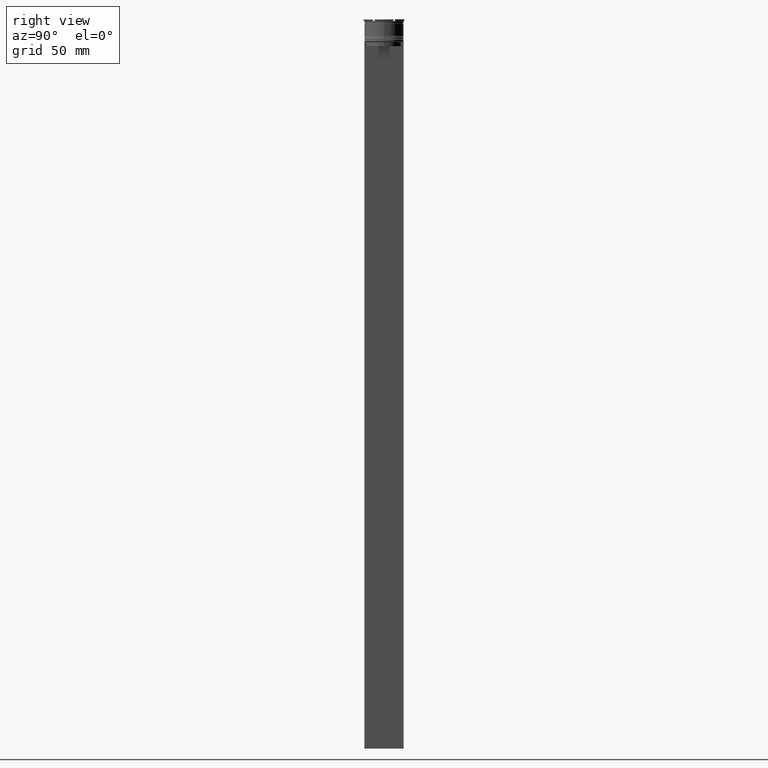
[diagram: clean part render]
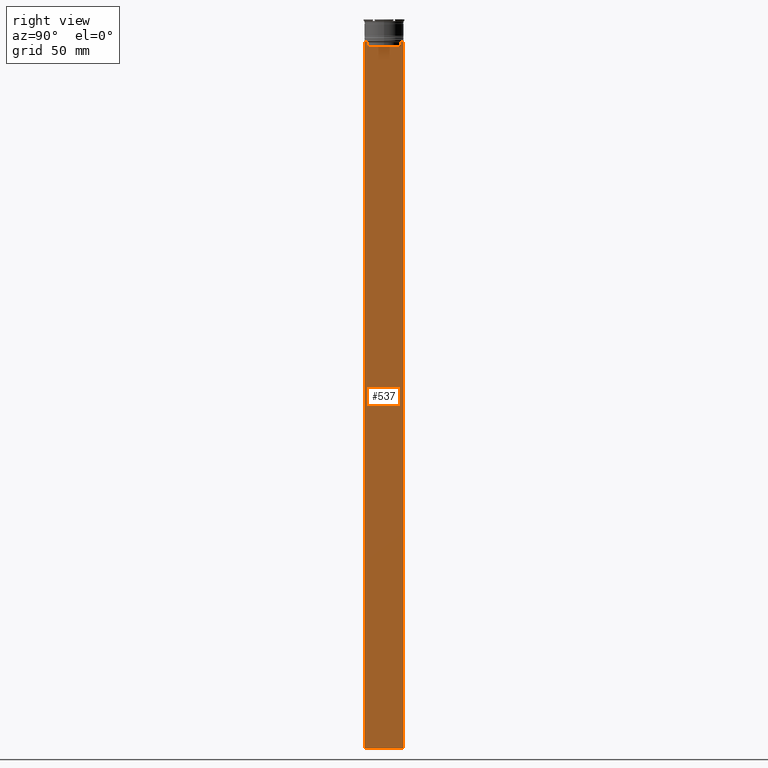
[diagram: same view with one face highlighted and labeled with its STEP entity id]
A machine part, right view. The second image highlights one B-rep face of the part: STEP entity #537.
In plain terms, the highlighted planar face has unit normal (-1, 0, 0).
Its self-contained STEP definition (entity closure, byte-faithful):
#28 = VERTEX_POINT ( 'NONE', #1785 ) ;
#31 = PLANE ( 'NONE',  #1013 ) ;
#105 = CARTESIAN_POINT ( 'NONE',  ( 0.5000000000000000000, 10.88852607105296322, 0.000000000000000000 ) ) ;
#127 = EDGE_LOOP ( 'NONE', ( #1177, #884, #1320, #496, #2816, #2507, #1279, #2245, #497, #1864, #1238, #2290 ) ) ;
#143 = CARTESIAN_POINT ( 'NONE',  ( 0.5000000000000000000, 10.88852607105296322, -14.50000000000000000 ) ) ;
#169 = CARTESIAN_POINT ( 'NONE',  ( 0.5000000000000000000, -12.38991525394746773, -14.00000000000000178 ) ) ;
#186 = VERTEX_POINT ( 'NONE', #169 ) ;
#201 = DIRECTION ( 'NONE',  ( 0.000000000000000000, 0.000000000000000000, -1.000000000000000000 ) ) ;
#275 = B_SPLINE_CURVE_WITH_KNOTS ( 'NONE', 3,
 ( #2765, #551, #1432, #2344 ),
 .UNSPECIFIED., .F., .F.,
 ( 4, 4 ),
 ( 0.01935560801904634073, 0.02006307108468586772 ),
 .UNSPECIFIED. ) ;
#318 = EDGE_CURVE ( 'NONE', #898, #1313, #2587, .T. ) ;
#410 = CARTESIAN_POINT ( 'NONE',  ( 0.5000000000000000000, 12.50000000000000711, -14.00000000000000178 ) ) ;
#450 = DIRECTION ( 'NONE',  ( 0.000000000000000000, -1.000000000000000000, 0.000000000000000000 ) ) ;
#495 = CARTESIAN_POINT ( 'NONE',  ( 0.5000000000000000000, -11.38902980942626719, -14.00000000000000178 ) ) ;
#496 = ORIENTED_EDGE ( 'NONE', *, *, #318, .T. ) ;
#497 = ORIENTED_EDGE ( 'NONE', *, *, #2730, .T. ) ;
#533 = DIRECTION ( 'NONE',  ( -0.000000000000000000, -0.000000000000000000, 1.000000000000000000 ) ) ;
#537 = ADVANCED_FACE ( 'NONE', ( #2692 ), #31, .F. ) ;
#551 = CARTESIAN_POINT ( 'NONE',  ( 0.5000000000000000000, 11.22219891375843304, -14.16667035472756808 ) ) ;
#611 = VERTEX_POINT ( 'NONE', #1136 ) ;
#633 = CARTESIAN_POINT ( 'NONE',  ( 0.5000000000000000000, -12.49999999999999289, 11.01999200639360765 ) ) ;
#653 = EDGE_CURVE ( 'NONE', #2620, #1045, #275, .T. ) ;
#678 = EDGE_CURVE ( 'NONE', #186, #869, #2110, .T. ) ;
#683 = DIRECTION ( 'NONE',  ( 0.000000000000000000, 0.000000000000000000, -1.000000000000000000 ) ) ;
#727 = CARTESIAN_POINT ( 'NONE',  ( 0.5000000000000000000, -10.88852607105296322, -14.50000000000000000 ) ) ;
#793 = CARTESIAN_POINT ( 'NONE',  ( 0.5000000000000000000, -12.49999999999999289, -14.00000000000000178 ) ) ;
#802 = DIRECTION ( 'NONE',  ( 0.000000000000000000, -1.000000000000000000, 0.000000000000000000 ) ) ;
#847 = VECTOR ( 'NONE', #1923, 1000.000000000000000 ) ;
#869 = VERTEX_POINT ( 'NONE', #2201 ) ;
#884 = ORIENTED_EDGE ( 'NONE', *, *, #653, .T. ) ;
#898 = VERTEX_POINT ( 'NONE', #1088 ) ;
#966 = CARTESIAN_POINT ( 'NONE',  ( 0.5000000000000000000, -11.38902980942626719, -14.00000000000000178 ) ) ;
#979 = LINE ( 'NONE', #1403, #1724 ) ;
#980 = VECTOR ( 'NONE', #1360, 1000.000000000000000 ) ;
#1013 = AXIS2_PLACEMENT_3D ( 'NONE', #2058, #1637, #1856 ) ;
#1022 = VECTOR ( 'NONE', #683, 1000.000000000000000 ) ;
#1037 = CARTESIAN_POINT ( 'NONE',  ( 0.5000000000000000000, -12.49999999999999289, -14.00000000000000178 ) ) ;
#1045 = VERTEX_POINT ( 'NONE', #143 ) ;
#1066 = VECTOR ( 'NONE', #802, 1000.000000000000000 ) ;
#1088 = CARTESIAN_POINT ( 'NONE',  ( 0.5000000000000000000, 10.88852607105296144, -17.00000000000000000 ) ) ;
#1108 = VECTOR ( 'NONE', #2770, 1000.000000000000000 ) ;
#1136 = CARTESIAN_POINT ( 'NONE',  ( 0.5000000000000000000, 12.50000000000000711, -464.0000000000000000 ) ) ;
#1177 = ORIENTED_EDGE ( 'NONE', *, *, #2493, .T. ) ;
#1203 = VERTEX_POINT ( 'NONE', #410 ) ;
#1238 = ORIENTED_EDGE ( 'NONE', *, *, #1417, .F. ) ;
#1279 = ORIENTED_EDGE ( 'NONE', *, *, #1709, .T. ) ;
#1313 = VERTEX_POINT ( 'NONE', #2506 ) ;
#1320 = ORIENTED_EDGE ( 'NONE', *, *, #1820, .T. ) ;
#1339 = EDGE_CURVE ( 'NONE', #1376, #1554, #2092, .T. ) ;
#1352 = VECTOR ( 'NONE', #2849, 1000.000000000000000 ) ;
#1356 = VECTOR ( 'NONE', #450, 1000.000000000000000 ) ;
#1360 = DIRECTION ( 'NONE',  ( 0.000000000000000000, 0.000000000000000000, -1.000000000000000000 ) ) ;
#1376 = VERTEX_POINT ( 'NONE', #727 ) ;
#1403 = CARTESIAN_POINT ( 'NONE',  ( 0.5000000000000000000, -12.49999999999999289, -464.0000000000000000 ) ) ;
#1417 = EDGE_CURVE ( 'NONE', #1203, #611, #2478, .T. ) ;
#1432 = CARTESIAN_POINT ( 'NONE',  ( 0.5000000000000000000, 11.05536450345590538, -14.33333719074559376 ) ) ;
#1513 = LINE ( 'NONE', #1761, #1356 ) ;
#1554 = VERTEX_POINT ( 'NONE', #966 ) ;
#1556 = LINE ( 'NONE', #105, #980 ) ;
#1637 = DIRECTION ( 'NONE',  ( -1.000000000000000000, 0.000000000000000000, 0.000000000000000000 ) ) ;
#1661 = CARTESIAN_POINT ( 'NONE',  ( 0.5000000000000000000, -12.49999999999999289, -14.00000000000000178 ) ) ;
#1709 = EDGE_CURVE ( 'NONE', #1554, #186, #1953, .T. ) ;
#1722 = VECTOR ( 'NONE', #533, 1000.000000000000000 ) ;
#1724 = VECTOR ( 'NONE', #2759, 1000.000000000000000 ) ;
#1726 = VECTOR ( 'NONE', #201, 1000.000000000000000 ) ;
#1733 = LINE ( 'NONE', #633, #1726 ) ;
#1761 = CARTESIAN_POINT ( 'NONE',  ( 0.5000000000000000000, -12.49999999999999289, -14.00000000000000178 ) ) ;
#1785 = CARTESIAN_POINT ( 'NONE',  ( 0.5000000000000000000, 12.38991525394746773, -14.00000000000000178 ) ) ;
#1807 = CARTESIAN_POINT ( 'NONE',  ( 0.5000000000000000000, 12.50000000000000711, 11.01999200639360765 ) ) ;
#1820 = EDGE_CURVE ( 'NONE', #1045, #898, #1556, .T. ) ;
#1835 = CARTESIAN_POINT ( 'NONE',  ( 0.5000000000000000000, -10.88852607105296322, -14.50000000000000000 ) ) ;
#1856 = DIRECTION ( 'NONE',  ( 0.000000000000000000, 0.000000000000000000, 1.000000000000000000 ) ) ;
#1864 = ORIENTED_EDGE ( 'NONE', *, *, #2448, .T. ) ;
#1923 = DIRECTION ( 'NONE',  ( 0.000000000000000000, -1.000000000000000000, 0.000000000000000000 ) ) ;
#1953 = LINE ( 'NONE', #1037, #1352 ) ;
#2051 = LINE ( 'NONE', #2265, #1722 ) ;
#2054 = CARTESIAN_POINT ( 'NONE',  ( 0.5000000000000000000, -11.22219891450652973, -14.16667035398018903 ) ) ;
#2058 = CARTESIAN_POINT ( 'NONE',  ( 0.5000000000000000000, -12.49999999999999289, 11.01999200639360765 ) ) ;
#2070 = VERTEX_POINT ( 'NONE', #2739 ) ;
#2078 = EDGE_CURVE ( 'NONE', #1313, #1376, #2051, .T. ) ;
#2092 = B_SPLINE_CURVE_WITH_KNOTS ( 'NONE', 3,
 ( #1835, #2212, #2054, #495 ),
 .UNSPECIFIED., .F., .F.,
 ( 4, 4 ),
 ( 0.05041323384703226551, 0.05112713601261605068 ),
 .UNSPECIFIED. ) ;
#2110 = LINE ( 'NONE', #1661, #1066 ) ;
#2201 = CARTESIAN_POINT ( 'NONE',  ( 0.5000000000000000000, -12.49999999999999289, -14.00000000000000178 ) ) ;
#2212 = CARTESIAN_POINT ( 'NONE',  ( 0.5000000000000000000, -11.05536450423839234, -14.33333718996393102 ) ) ;
#2245 = ORIENTED_EDGE ( 'NONE', *, *, #678, .T. ) ;
#2265 = CARTESIAN_POINT ( 'NONE',  ( 0.5000000000000000000, -10.88852607105296322, 0.000000000000000000 ) ) ;
#2278 = EDGE_CURVE ( 'NONE', #1203, #28, #1513, .T. ) ;
#2290 = ORIENTED_EDGE ( 'NONE', *, *, #2278, .T. ) ;
#2344 = CARTESIAN_POINT ( 'NONE',  ( 0.5000000000000000000, 10.88852607105296322, -14.50000000000000000 ) ) ;
#2369 = LINE ( 'NONE', #793, #847 ) ;
#2448 = EDGE_CURVE ( 'NONE', #2070, #611, #979, .T. ) ;
#2478 = LINE ( 'NONE', #1807, #1022 ) ;
#2493 = EDGE_CURVE ( 'NONE', #28, #2620, #2369, .T. ) ;
#2506 = CARTESIAN_POINT ( 'NONE',  ( 0.5000000000000000000, -10.88852607105296144, -17.00000000000000000 ) ) ;
#2507 = ORIENTED_EDGE ( 'NONE', *, *, #1339, .T. ) ;
#2587 = LINE ( 'NONE', #2826, #1108 ) ;
#2620 = VERTEX_POINT ( 'NONE', #2653 ) ;
#2653 = CARTESIAN_POINT ( 'NONE',  ( 0.5000000000000000000, 11.38902980942626719, -14.00000000000000178 ) ) ;
#2692 = FACE_OUTER_BOUND ( 'NONE', #127, .T. ) ;
#2730 = EDGE_CURVE ( 'NONE', #869, #2070, #1733, .T. ) ;
#2739 = CARTESIAN_POINT ( 'NONE',  ( 0.5000000000000000000, -12.49999999999999289, -464.0000000000000000 ) ) ;
#2759 = DIRECTION ( 'NONE',  ( 0.000000000000000000, 1.000000000000000000, 0.000000000000000000 ) ) ;
#2765 = CARTESIAN_POINT ( 'NONE',  ( 0.5000000000000000000, 11.38902980942626719, -14.00000000000000178 ) ) ;
#2770 = DIRECTION ( 'NONE',  ( 0.000000000000000000, -1.000000000000000000, 0.000000000000000000 ) ) ;
#2816 = ORIENTED_EDGE ( 'NONE', *, *, #2078, .T. ) ;
#2826 = CARTESIAN_POINT ( 'NONE',  ( 0.5000000000000000000, 10.90000000000000213, -17.00000000000000000 ) ) ;
#2849 = DIRECTION ( 'NONE',  ( 0.000000000000000000, -1.000000000000000000, 0.000000000000000000 ) ) ;